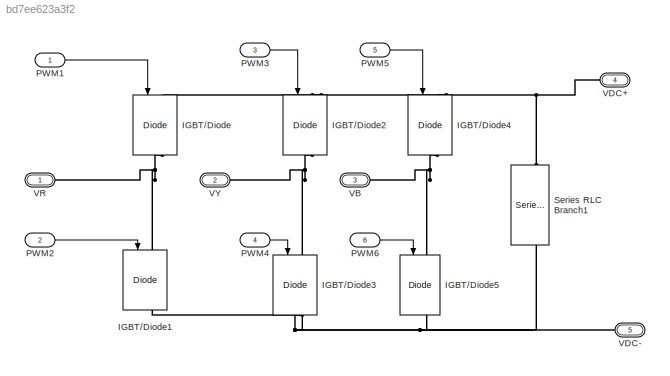
MODEL slx_bd7ee623a3f2
KIND model
CONFIG AbsTol = auto
CONFIG EnableMultiTasking = off
CONFIG FixedStep = auto
CONFIG MaxStep = auto
CONFIG MinStep = auto
CONFIG RelTol = 1e-3
CONFIG SampleTimeConstraint = Unconstrained
CONFIG SolverName = VariableStepAuto
CONFIG StartTime = 0.0
CONFIG StopTime = 10.0
BLOCK [Reference] IGBT//Diode  REF=spsIGBTDiodeLib/IGBT//Diode
  LibrarySourceBlock = sps_lib/Power Electronics/IGBT//Diode
  NameLocation = left
  SourceBlock = spsIGBTDiodeLib/IGBT//Diode
  SourceType = IGBT/Diode
BLOCK [Reference] IGBT//Diode1  REF=spsIGBTDiodeLib/IGBT//Diode
  LibrarySourceBlock = sps_lib/Power Electronics/IGBT//Diode
  NameLocation = left
  SourceBlock = spsIGBTDiodeLib/IGBT//Diode
  SourceType = IGBT/Diode
BLOCK [Reference] IGBT//Diode2  REF=spsIGBTDiodeLib/IGBT//Diode
  LibrarySourceBlock = sps_lib/Power Electronics/IGBT//Diode
  NameLocation = left
  SourceBlock = spsIGBTDiodeLib/IGBT//Diode
  SourceType = IGBT/Diode
BLOCK [Reference] IGBT//Diode3  REF=spsIGBTDiodeLib/IGBT//Diode
  LibrarySourceBlock = sps_lib/Power Electronics/IGBT//Diode
  NameLocation = left
  SourceBlock = spsIGBTDiodeLib/IGBT//Diode
  SourceType = IGBT/Diode
BLOCK [Reference] IGBT//Diode4  REF=spsIGBTDiodeLib/IGBT//Diode
  LibrarySourceBlock = sps_lib/Power Electronics/IGBT//Diode
  NameLocation = left
  SourceBlock = spsIGBTDiodeLib/IGBT//Diode
  SourceType = IGBT/Diode
BLOCK [Reference] IGBT//Diode5  REF=spsIGBTDiodeLib/IGBT//Diode
  LibrarySourceBlock = sps_lib/Power Electronics/IGBT//Diode
  NameLocation = left
  SourceBlock = spsIGBTDiodeLib/IGBT//Diode
  SourceType = IGBT/Diode
BLOCK [Inport] PWM1
BLOCK [Inport] PWM2
  Port = 2
BLOCK [Inport] PWM3
  Port = 3
BLOCK [Inport] PWM4
  Port = 4
BLOCK [Inport] PWM5
  Port = 5
BLOCK [Inport] PWM6
  Port = 6
BLOCK [Reference] Series RLC Branch1  REF=spsSeriesRLCBranchLib/Series RLC Branch
  LibrarySourceBlock = sps_lib/Passives/Series RLC Branch
  NameLocation = left
  SourceBlock = spsSeriesRLCBranchLib/Series RLC Branch
  SourceType = Series RLC Branch
BLOCK [PMIOPort] VB
  Port = 3
  Side = Left
BLOCK [PMIOPort] VDC+
  Port = 4
  Side = Right
BLOCK [PMIOPort] VDC-
  Port = 5
  Side = Right
BLOCK [PMIOPort] VR
  Side = Left
BLOCK [PMIOPort] VY
  Port = 2
  Side = Left
LINE PWM1:1 -> IGBT//Diode:1
LINE PWM2:1 -> IGBT//Diode1:1
LINE PWM3:1 -> IGBT//Diode2:1
LINE PWM4:1 -> IGBT//Diode3:1
LINE PWM5:1 -> IGBT//Diode4:1
LINE PWM6:1 -> IGBT//Diode5:1
PNET net1: IGBT//Diode1:LConn1 -- IGBT//Diode:RConn1 -- VR:RConn1
PNET net2: IGBT//Diode1:RConn1 -- IGBT//Diode3:RConn1 -- IGBT//Diode5:RConn1 -- Series RLC Branch1:RConn1 -- VDC-:RConn1
PNET net3: IGBT//Diode2:LConn1 -- IGBT//Diode4:LConn1 -- IGBT//Diode:LConn1 -- Series RLC Branch1:LConn1 -- VDC+:RConn1
PNET net4: IGBT//Diode2:RConn1 -- IGBT//Diode3:LConn1 -- VY:RConn1
PNET net5: IGBT//Diode4:RConn1 -- IGBT//Diode5:LConn1 -- VB:RConn1
note: PNET lines group multi-terminal physical nets as a canonical sorted terminal list (undirected conserving connections); 2-terminal nets keep the pairwise PLINE form
